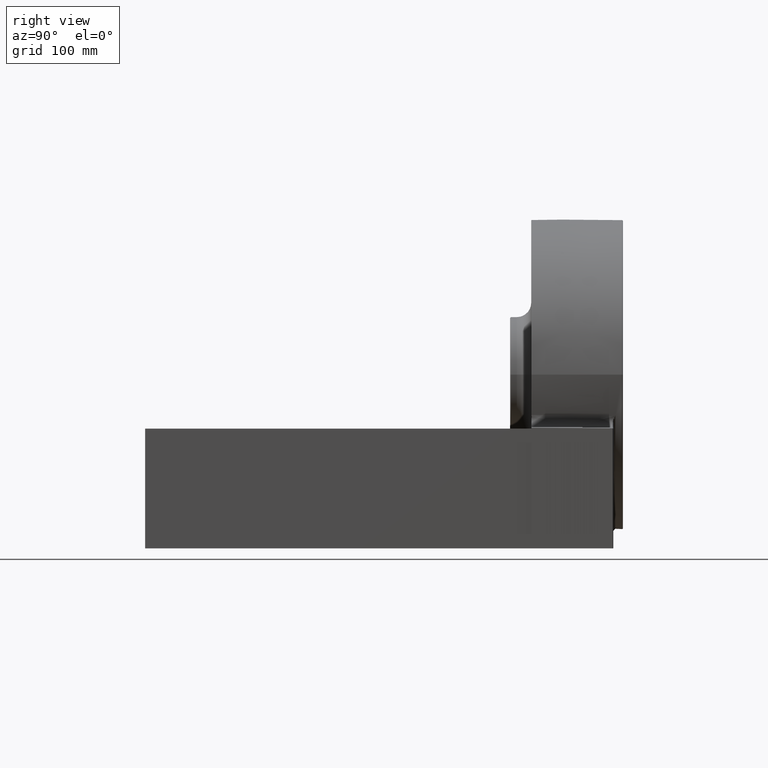
[diagram: clean part render]
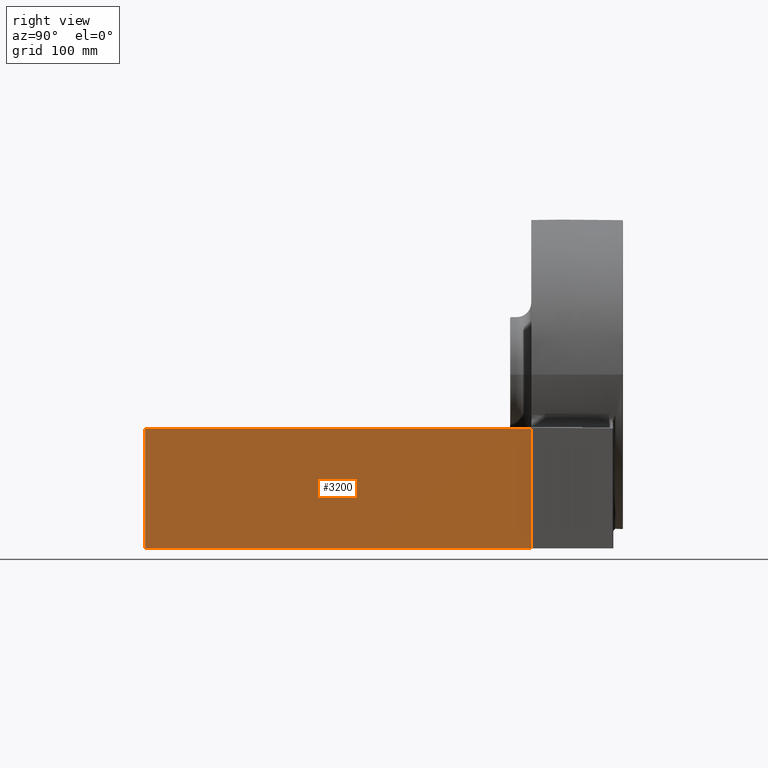
[diagram: same view with one face highlighted and labeled with its STEP entity id]
A machine part, right view. The second image highlights one B-rep face of the part: STEP entity #3200.
In plain terms, the highlighted planar face has unit normal (-1, -0, 0).
Its self-contained STEP definition (entity closure, byte-faithful):
#92 = ORIENTED_EDGE ( 'NONE', *, *, #4413, .F. ) ;
#102 = VERTEX_POINT ( 'NONE', #591 ) ;
#324 = CARTESIAN_POINT ( 'NONE',  ( 190.0000000000000000, 400.0000000000000000, 2.081668171172168513E-14 ) ) ;
#591 = CARTESIAN_POINT ( 'NONE',  ( 190.0000000000000000, 0.0000000000000000000, 1.387778780781445676E-14 ) ) ;
#894 = AXIS2_PLACEMENT_3D ( 'NONE', #2559, #4304, #1261 ) ;
#1203 = ORIENTED_EDGE ( 'NONE', *, *, #3458, .T. ) ;
#1222 = EDGE_LOOP ( 'NONE', ( #92, #1203, #3675, #3770 ) ) ;
#1261 = DIRECTION ( 'NONE',  ( 0.0000000000000000000, 3.165747346086518386E-32, 1.000000000000000000 ) ) ;
#1344 = EDGE_CURVE ( 'NONE', #102, #4948, #2840, .T. ) ;
#1603 = LINE ( 'NONE', #2095, #4163 ) ;
#1883 = CARTESIAN_POINT ( 'NONE',  ( 190.0000000000000000, 400.0000000000000000, 2.081668171172168513E-14 ) ) ;
#2095 = CARTESIAN_POINT ( 'NONE',  ( 190.0000000000000000, 524.2577965360725329, -124.0000000000000426 ) ) ;
#2288 = LINE ( 'NONE', #1883, #2432 ) ;
#2381 = LINE ( 'NONE', #4128, #4100 ) ;
#2432 = VECTOR ( 'NONE', #4406, 1000.000000000000000 ) ;
#2559 = CARTESIAN_POINT ( 'NONE',  ( 190.0000000000000000, 524.2577965360725329, 2.081668171172168513E-14 ) ) ;
#2711 = VERTEX_POINT ( 'NONE', #324 ) ;
#2840 = LINE ( 'NONE', #4900, #5040 ) ;
#2936 = CARTESIAN_POINT ( 'NONE',  ( 190.0000000000000000, 400.0000000000000000, -124.0000000000000284 ) ) ;
#2980 = CARTESIAN_POINT ( 'NONE',  ( 190.0000000000000000, 0.0000000000000000000, -124.0000000000000284 ) ) ;
#3200 = ADVANCED_FACE ( 'NONE', ( #5163 ), #5190, .F. ) ;
#3204 = VERTEX_POINT ( 'NONE', #2936 ) ;
#3278 = DIRECTION ( 'NONE',  ( -2.465190328815661892E-32, -1.000000000000000000, -3.165747346086518933E-32 ) ) ;
#3458 = EDGE_CURVE ( 'NONE', #2711, #102, #2381, .T. ) ;
#3558 = EDGE_CURVE ( 'NONE', #3204, #4948, #1603, .T. ) ;
#3675 = ORIENTED_EDGE ( 'NONE', *, *, #1344, .T. ) ;
#3770 = ORIENTED_EDGE ( 'NONE', *, *, #3558, .F. ) ;
#4100 = VECTOR ( 'NONE', #3278, 1000.000000000000000 ) ;
#4128 = CARTESIAN_POINT ( 'NONE',  ( 190.0000000000000000, 524.2577965360725329, 2.081668171172168513E-14 ) ) ;
#4163 = VECTOR ( 'NONE', #5154, 1000.000000000000000 ) ;
#4304 = DIRECTION ( 'NONE',  ( -1.000000000000000000, -2.465190328815661345E-32, 7.804169741046331897E-64 ) ) ;
#4406 = DIRECTION ( 'NONE',  ( 0.0000000000000000000, -3.165747346086518386E-32, -1.000000000000000000 ) ) ;
#4413 = EDGE_CURVE ( 'NONE', #2711, #3204, #2288, .T. ) ;
#4900 = CARTESIAN_POINT ( 'NONE',  ( 190.0000000000000000, 0.0000000000000000000, 1.387778780781445676E-14 ) ) ;
#4948 = VERTEX_POINT ( 'NONE', #2980 ) ;
#4985 = DIRECTION ( 'NONE',  ( 0.0000000000000000000, -3.165747346086518386E-32, -1.000000000000000000 ) ) ;
#5040 = VECTOR ( 'NONE', #4985, 1000.000000000000000 ) ;
#5154 = DIRECTION ( 'NONE',  ( -2.465190328815661892E-32, -1.000000000000000000, -3.165747346086518933E-32 ) ) ;
#5163 = FACE_OUTER_BOUND ( 'NONE', #1222, .T. ) ;
#5190 = PLANE ( 'NONE',  #894 ) ;